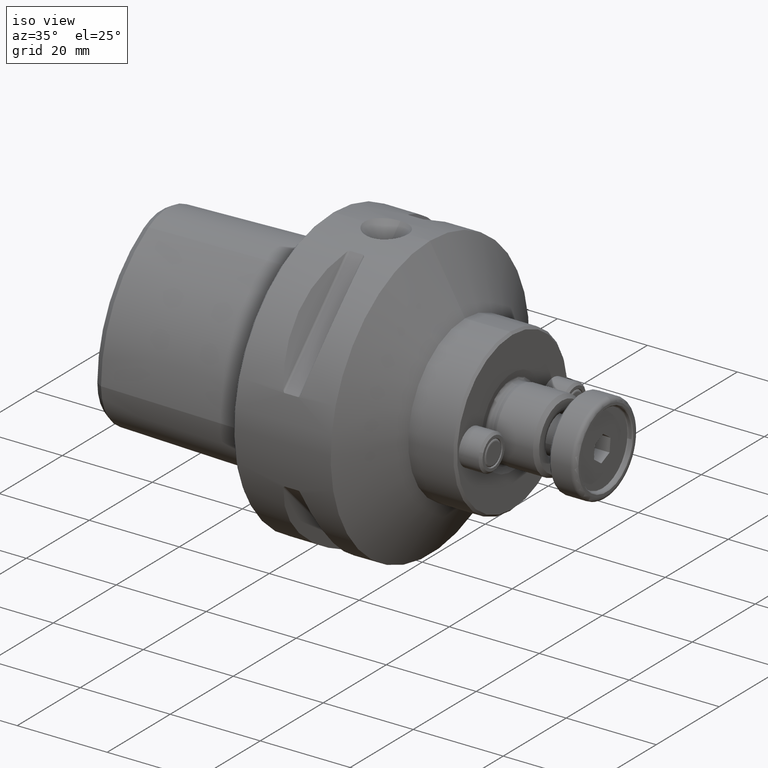
[diagram: clean part render]
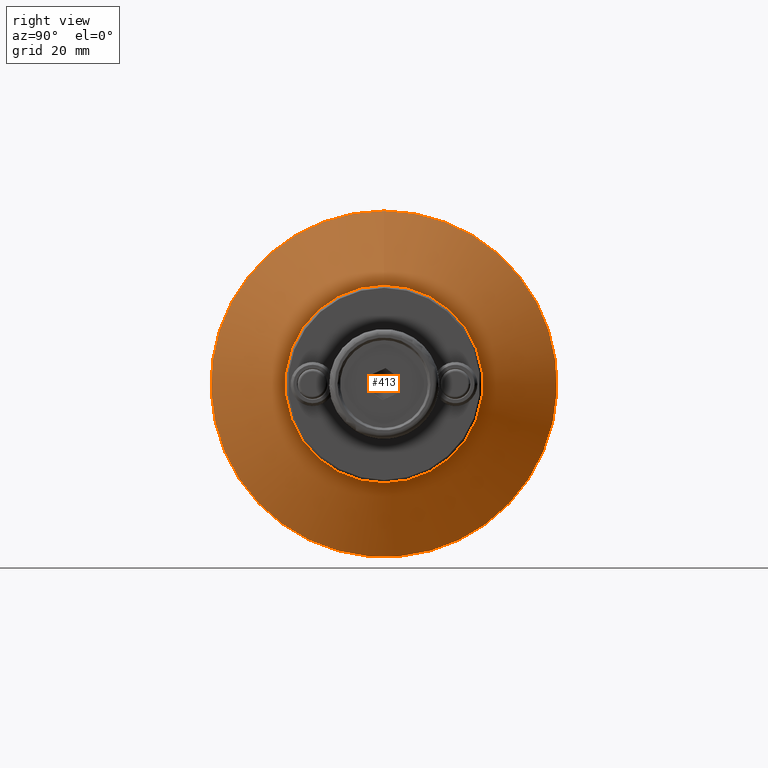
[diagram: tour spotlight — one face highlighted and labeled with its STEP entity id]
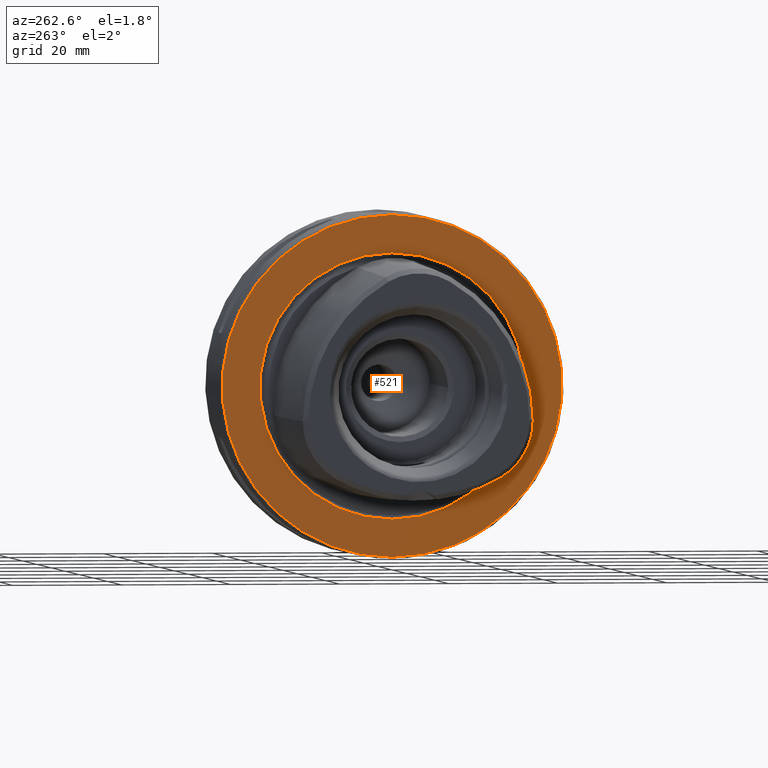
[diagram: tour spotlight — one face highlighted and labeled with its STEP entity id]
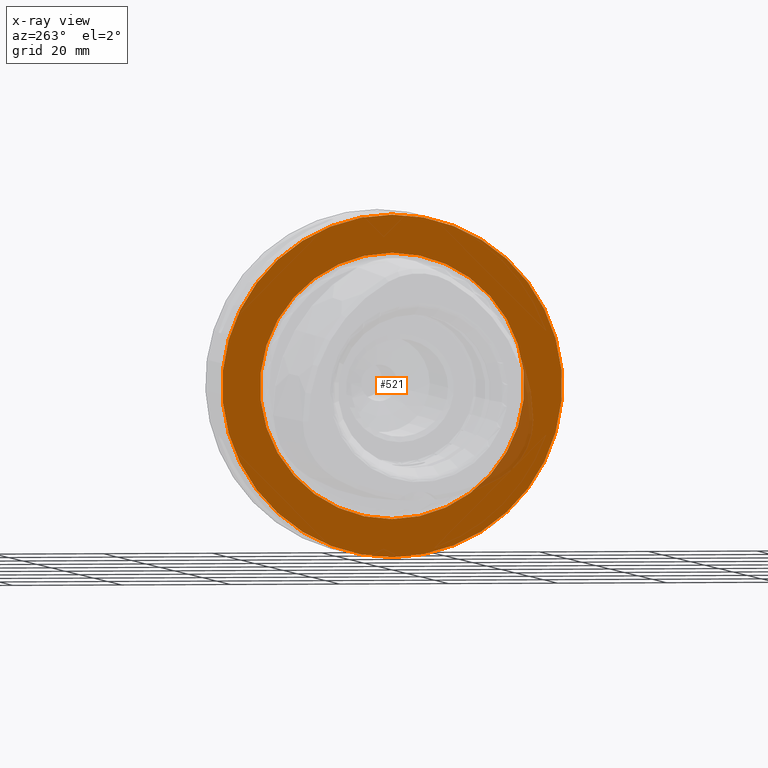
[diagram: x-ray of the same camera — body ghosted, this tour face saturated]
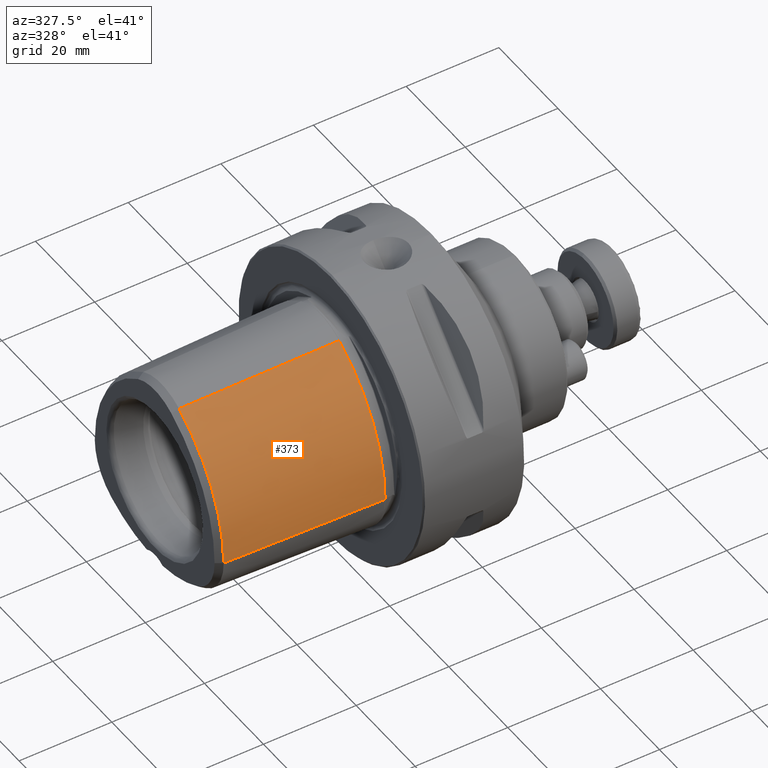
[diagram: tour spotlight — one face highlighted and labeled with its STEP entity id]
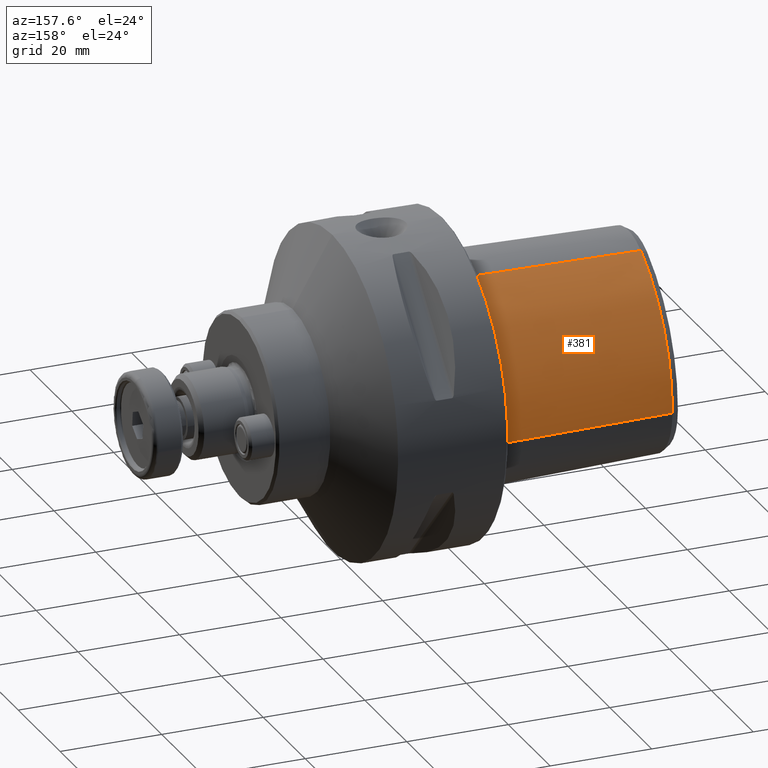
[diagram: tour spotlight — one face highlighted and labeled with its STEP entity id]
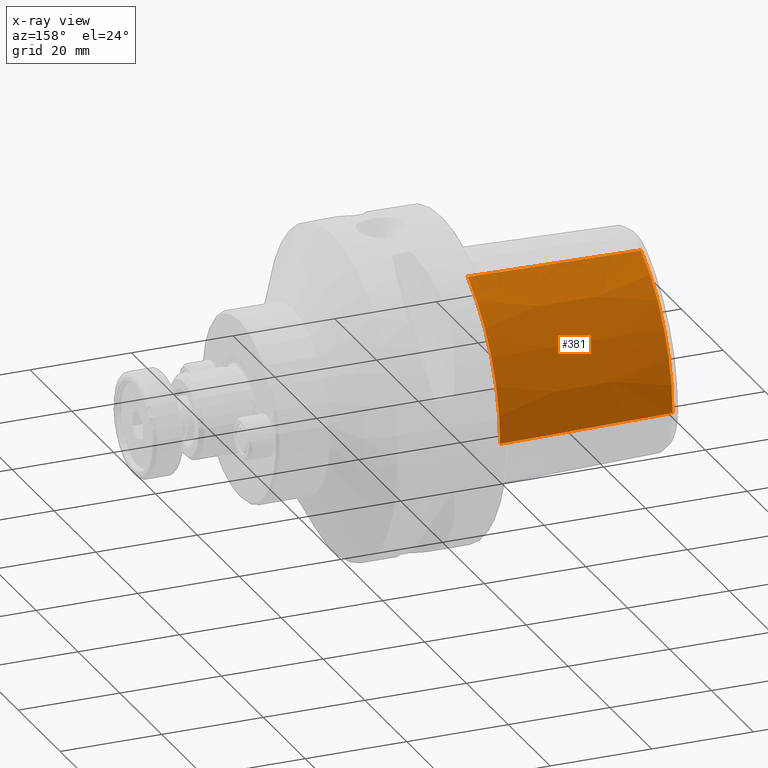
[diagram: x-ray of the same camera — body ghosted, this tour face saturated]
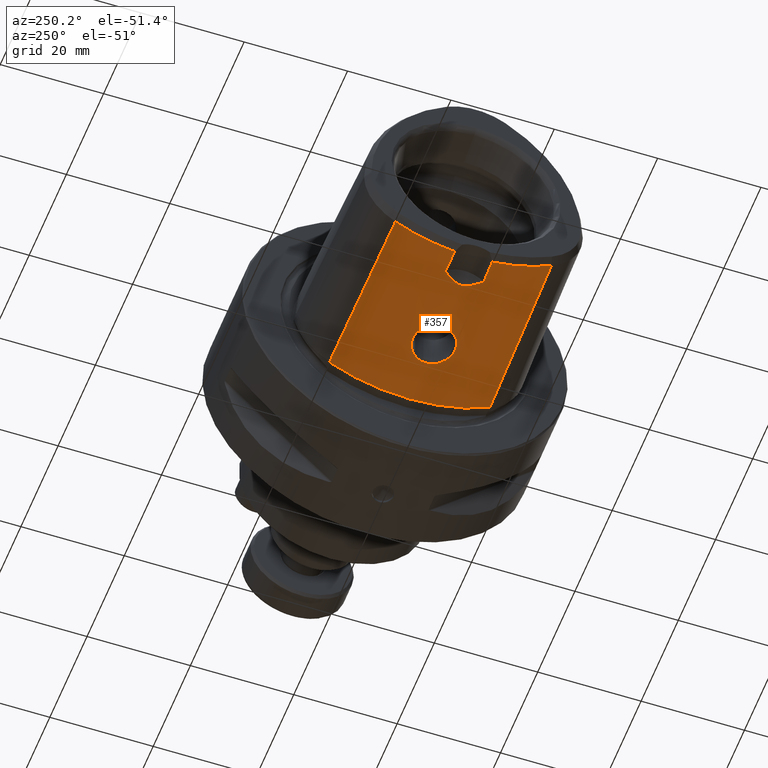
[diagram: tour spotlight — one face highlighted and labeled with its STEP entity id]
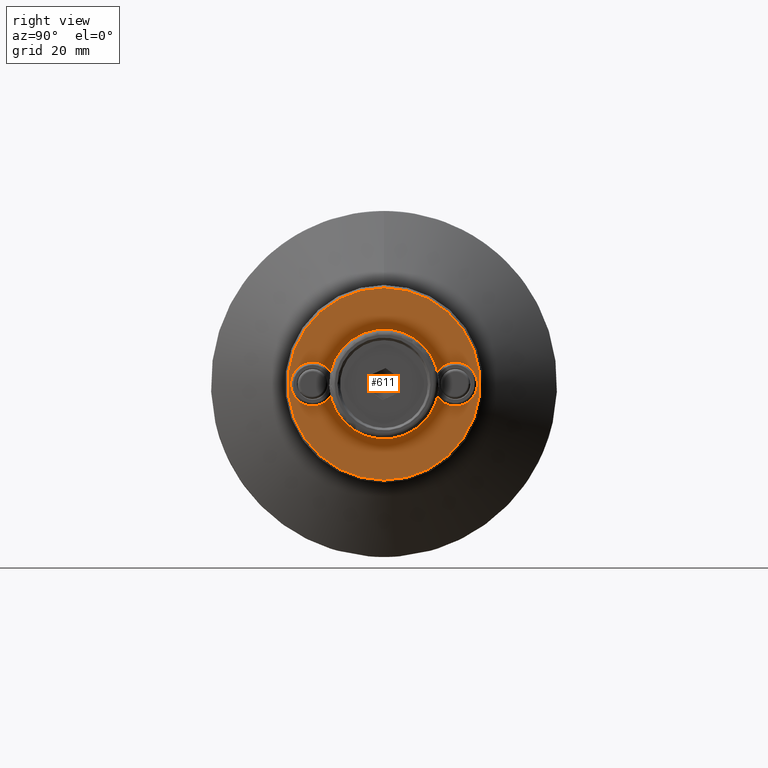
[diagram: tour spotlight — one face highlighted and labeled with its STEP entity id]
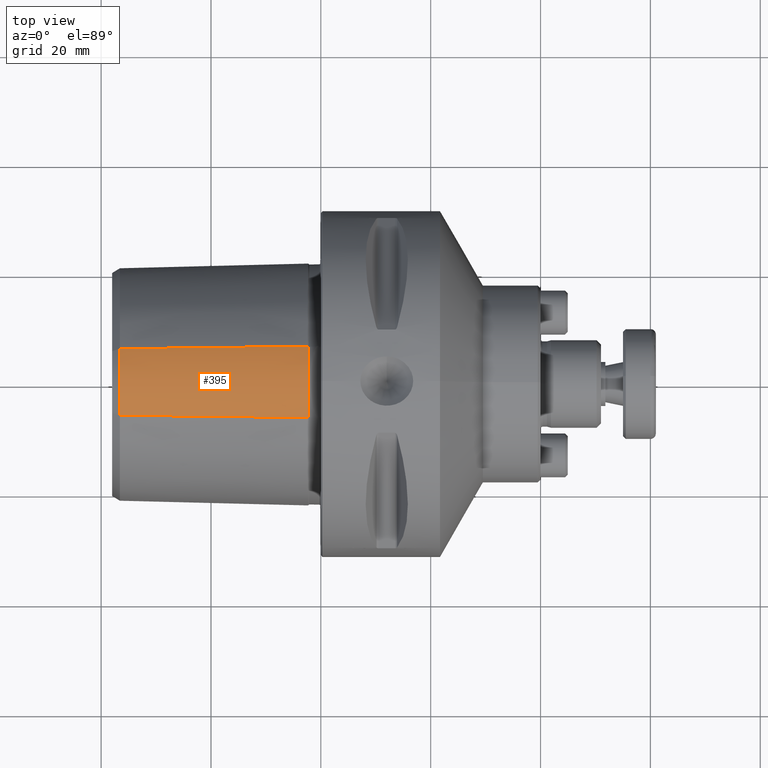
[diagram: tour spotlight — one face highlighted and labeled with its STEP entity id]
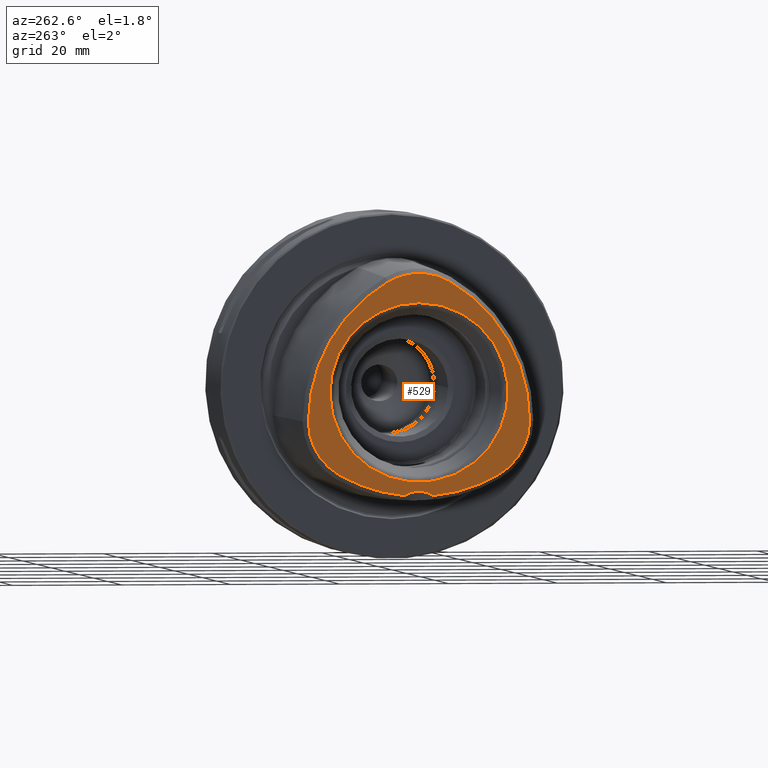
[diagram: tour spotlight — one face highlighted and labeled with its STEP entity id]
A machine part: a face-by-face anatomy tour. The part has 235 B-rep faces; the first image is the clean iso view, then the 8 largest visible faces are spotlighted one at a time (largest first), each with its STEP entity span.

Face 1 — right view, entity #413. In plain terms, the highlighted conical surface has half-angle 60 deg.
Definition (entity closure, byte-faithful):
#413 = ADVANCED_FACE( '', ( #934, #935 ), #936, .T. );
#934 = FACE_BOUND( '', #1668, .T. );
#935 = FACE_OUTER_BOUND( '', #1669, .T. );
#936 = CONICAL_SURFACE( '', #1670, 18.0000000000000, 1.04719755119660 );
#1668 = EDGE_LOOP( '', ( #2518 ) );
#1669 = EDGE_LOOP( '', ( #2519 ) );
#1670 = AXIS2_PLACEMENT_3D( '', #2520, #2521, #2522 );
#2518 = ORIENTED_EDGE( '', *, *, #3990, .T. );
#2519 = ORIENTED_EDGE( '', *, *, #3991, .T. );
#2520 = CARTESIAN_POINT( '', ( 29.4942286340599, 0.000000000000000, 6.12323399573676E-016 ) );
#2521 = DIRECTION( '', ( -1.00000000000000, 0.000000000000000, -0.000000000000000 ) );
#2522 = DIRECTION( '', ( 0.000000000000000, 0.000000000000000, 1.00000000000000 ) );
#3990 = EDGE_CURVE( '', #4669, #4669, #4670, .T. );
#3991 = EDGE_CURVE( '', #4671, #4671, #4672, .F. );
#4669 = VERTEX_POINT( '', #5750 );
#4670 = CIRCLE( '', #5751, 18.0000000000000 );
#4671 = VERTEX_POINT( '', #5752 );
#4672 = CIRCLE( '', #5753, 31.5000000000000 );
#5750 = CARTESIAN_POINT( '', ( 29.4942286340599, 0.000000000000000, 18.0000000000000 ) );
#5751 = AXIS2_PLACEMENT_3D( '', #7250, #7251, #7252 );
#5752 = CARTESIAN_POINT( '', ( 21.7000000000000, 0.000000000000000, 31.5000000000000 ) );
#5753 = AXIS2_PLACEMENT_3D( '', #7253, #7254, #7255 );
#7250 = CARTESIAN_POINT( '', ( 29.4942286340599, 0.000000000000000, 6.12323399573676E-016 ) );
#7251 = DIRECTION( '', ( -1.00000000000000, 0.000000000000000, 0.000000000000000 ) );
#7252 = DIRECTION( '', ( 0.000000000000000, 0.000000000000000, 1.00000000000000 ) );
#7253 = CARTESIAN_POINT( '', ( 21.7000000000000, 0.000000000000000, 6.12323399573676E-016 ) );
#7254 = DIRECTION( '', ( -1.00000000000000, 0.000000000000000, 0.000000000000000 ) );
#7255 = DIRECTION( '', ( 0.000000000000000, 0.000000000000000, 1.00000000000000 ) );

Face 2 — auxiliary view, entity #521. An x-ray twin of the same camera follows (body ghosted, this face saturated) — the face is partly hidden behind the body. In plain terms, the highlighted planar face has unit normal (-1, 0, 0).
Definition (entity closure, byte-faithful):
#521 = ADVANCED_FACE( '', ( #1121, #1122 ), #1123, .T. );
#1121 = FACE_OUTER_BOUND( '', #1855, .T. );
#1122 = FACE_BOUND( '', #1856, .T. );
#1123 = PLANE( '', #1857 );
#1855 = EDGE_LOOP( '', ( #2899 ) );
#1856 = EDGE_LOOP( '', ( #2900 ) );
#1857 = AXIS2_PLACEMENT_3D( '', #2901, #2902, #2903 );
#2899 = ORIENTED_EDGE( '', *, *, #4168, .T. );
#2900 = ORIENTED_EDGE( '', *, *, #4169, .F. );
#2901 = CARTESIAN_POINT( '', ( -6.93889390390723E-015, 0.000000000000000, 24.2000000000000 ) );
#2902 = DIRECTION( '', ( -1.00000000000000, 0.000000000000000, 0.000000000000000 ) );
#2903 = DIRECTION( '', ( 0.000000000000000, 0.000000000000000, 1.00000000000000 ) );
#4168 = EDGE_CURVE( '', #4941, #4941, #4942, .T. );
#4169 = EDGE_CURVE( '', #4943, #4943, #4944, .T. );
#4941 = VERTEX_POINT( '', #6221 );
#4942 = CIRCLE( '', #6222, 31.2000000000000 );
#4943 = VERTEX_POINT( '', #6223 );
#4944 = CIRCLE( '', #6224, 24.2642135624132 );
#6221 = CARTESIAN_POINT( '', ( -6.93889390390723E-015, 0.000000000000000, 31.2000000000000 ) );
#6222 = AXIS2_PLACEMENT_3D( '', #7472, #7473, #7474 );
#6223 = CARTESIAN_POINT( '', ( -6.93889390390723E-015, 0.000000000000000, 24.2642135624132 ) );
#6224 = AXIS2_PLACEMENT_3D( '', #7475, #7476, #7477 );
#7472 = CARTESIAN_POINT( '', ( -6.93889390390723E-015, 0.000000000000000, 5.40937187851751E-015 ) );
#7473 = DIRECTION( '', ( -1.00000000000000, 0.000000000000000, 0.000000000000000 ) );
#7474 = DIRECTION( '', ( 0.000000000000000, 0.000000000000000, 1.00000000000000 ) );
#7475 = CARTESIAN_POINT( '', ( -6.93889390390723E-015, 0.000000000000000, 0.000000000000000 ) );
#7476 = DIRECTION( '', ( -1.00000000000000, 0.000000000000000, 0.000000000000000 ) );
#7477 = DIRECTION( '', ( 0.000000000000000, 0.000000000000000, 1.00000000000000 ) );

Face 3 — auxiliary view, entity #373. In plain terms, the highlighted conical surface has half-angle 1.432 deg.
Definition (entity closure, byte-faithful):
#373 = ADVANCED_FACE( '', ( #863 ), #864, .T. );
#863 = FACE_OUTER_BOUND( '', #1597, .T. );
#864 = CONICAL_SURFACE( '', #1598, 31.0497422611929, 0.0249969933592226 );
#1597 = EDGE_LOOP( '', ( #2371, #2372, #2373, #2374 ) );
#1598 = AXIS2_PLACEMENT_3D( '', #2375, #2376, #2377 );
#2371 = ORIENTED_EDGE( '', *, *, #3912, .F. );
#2372 = ORIENTED_EDGE( '', *, *, #3913, .T. );
#2373 = ORIENTED_EDGE( '', *, *, #3897, .T. );
#2374 = ORIENTED_EDGE( '', *, *, #3914, .T. );
#2375 = CARTESIAN_POINT( '', ( -3.00000000000000, 9.04974226119300, -5.22487113059656 ) );
#2376 = DIRECTION( '', ( 1.00000000000000, -0.000000000000000, 0.000000000000000 ) );
#2377 = DIRECTION( '', ( 0.000000000000000, 0.000000000000000, -1.00000000000000 ) );
#3897 = EDGE_CURVE( '', #4516, #4517, #4518, .T. );
#3912 = EDGE_CURVE( '', #4541, #4542, #4543, .T. );
#3913 = EDGE_CURVE( '', #4541, #4516, #4544, .T. );
#3914 = EDGE_CURVE( '', #4517, #4542, #4545, .T. );
#4516 = VERTEX_POINT( '', #5469 );
#4517 = VERTEX_POINT( '', #5470 );
#4518 = LINE( '', #5471, #5472 );
#4541 = VERTEX_POINT( '', #5524 );
#4542 = VERTEX_POINT( '', #5525 );
#4543 = LINE( '', #5526, #5527 );
#4544 = CIRCLE( '', #5528, 30.2101072674812 );
#4545 = CIRCLE( '', #5529, 31.0677289915256 );
#5469 = CARTESIAN_POINT( '', ( -36.5824429953531, -21.1603650062883, -5.22487113059656 ) );
#5470 = CARTESIAN_POINT( '', ( -2.28059412649899, -22.0179867303326, -5.22487113059657 ) );
#5471 = CARTESIAN_POINT( '', ( -3.00000000000000, -22.0000000000000, -5.22487113059656 ) );
#5472 = VECTOR( '', #7127, 1000.00000000000 );
#5524 = CARTESIAN_POINT( '', ( -36.5824429953531, -6.05531137254791, 20.9378492140952 ) );
#5525 = CARTESIAN_POINT( '', ( -2.28059412649928, -6.48412223457001, 21.6805714139549 ) );
#5526 = CARTESIAN_POINT( '', ( -3.00000000000000, -6.47512886940373, 21.6649944485558 ) );
#5527 = VECTOR( '', #7145, 1000.00000000000 );
#5528 = AXIS2_PLACEMENT_3D( '', #7146, #7147, #7148 );
#5529 = AXIS2_PLACEMENT_3D( '', #7149, #7150, #7151 );
#7127 = DIRECTION( '', ( 0.999687591429374, -0.0249943902133482, 4.88745584009368E-018 ) );
#7145 = DIRECTION( '', ( 0.999687591429374, -0.0124971951066744, 0.0216457768768605 ) );
#7146 = CARTESIAN_POINT( '', ( -36.5824429953531, 9.04974226119300, -5.22487113059656 ) );
#7147 = DIRECTION( '', ( 1.00000000000000, 0.000000000000000, 0.000000000000000 ) );
#7148 = DIRECTION( '', ( 0.000000000000000, 0.000000000000000, -1.00000000000000 ) );
#7149 = CARTESIAN_POINT( '', ( -2.28059412649917, 9.04974226119300, -5.22487113059656 ) );
#7150 = DIRECTION( '', ( -1.00000000000000, 6.12303176911189E-017, 0.000000000000000 ) );
#7151 = DIRECTION( '', ( -6.12303176911189E-017, -1.00000000000000, 0.000000000000000 ) );

Face 4 — auxiliary view, entity #381. An x-ray twin of the same camera follows (body ghosted, this face saturated) — the face is partly hidden behind the body. In plain terms, the highlighted conical surface has half-angle 1.432 deg.
Definition (entity closure, byte-faithful):
#381 = ADVANCED_FACE( '', ( #877 ), #878, .T. );
#877 = FACE_OUTER_BOUND( '', #1611, .T. );
#878 = CONICAL_SURFACE( '', #1612, 31.0497422611929, 0.0249969933592226 );
#1611 = EDGE_LOOP( '', ( #2401, #2402, #2403, #2404 ) );
#1612 = AXIS2_PLACEMENT_3D( '', #2405, #2406, #2407 );
#2401 = ORIENTED_EDGE( '', *, *, #3868, .F. );
#2402 = ORIENTED_EDGE( '', *, *, #3927, .T. );
#2403 = ORIENTED_EDGE( '', *, *, #3928, .T. );
#2404 = ORIENTED_EDGE( '', *, *, #3929, .T. );
#2405 = CARTESIAN_POINT( '', ( -3.00000000000000, -9.04974226119298, -5.22487113059658 ) );
#2406 = DIRECTION( '', ( 1.00000000000000, -0.000000000000000, 0.000000000000000 ) );
#2407 = DIRECTION( '', ( 0.000000000000000, 0.000000000000000, -1.00000000000000 ) );
#3868 = EDGE_CURVE( '', #4465, #4467, #4468, .T. );
#3927 = EDGE_CURVE( '', #4465, #4564, #4565, .T. );
#3928 = EDGE_CURVE( '', #4564, #4566, #4567, .T. );
#3929 = EDGE_CURVE( '', #4566, #4467, #4568, .T. );
#4465 = VERTEX_POINT( '', #5328 );
#4467 = VERTEX_POINT( '', #5330 );
#4468 = LINE( '', #5331, #5332 );
#4564 = VERTEX_POINT( '', #5554 );
#4565 = CIRCLE( '', #5555, 30.2101072674812 );
#4566 = VERTEX_POINT( '', #5556 );
#4567 = LINE( '', #5557, #5558 );
#4568 = CIRCLE( '', #5559, 31.0677289915256 );
#5328 = CARTESIAN_POINT( '', ( -36.5824429953531, 21.1603650062886, -5.22487113059657 ) );
#5330 = CARTESIAN_POINT( '', ( -2.28059412649949, 22.0179867303329, -5.22487113059657 ) );
#5331 = CARTESIAN_POINT( '', ( -3.00000000000000, 22.0000000000000, -5.22487113059657 ) );
#5332 = VECTOR( '', #7077, 1000.00000000000 );
#5554 = CARTESIAN_POINT( '', ( -36.5824429953531, 6.05531137254766, 20.9378492140951 ) );
#5555 = AXIS2_PLACEMENT_3D( '', #7170, #7171, #7172 );
#5556 = CARTESIAN_POINT( '', ( -2.28059412649925, 6.48412223456984, 21.6805714139549 ) );
#5557 = CARTESIAN_POINT( '', ( -3.00000000000000, 6.47512886940346, 21.6649944485557 ) );
#5558 = VECTOR( '', #7173, 1000.00000000000 );
#5559 = AXIS2_PLACEMENT_3D( '', #7174, #7175, #7176 );
#7077 = DIRECTION( '', ( 0.999687591429374, 0.0249943902133482, -2.34364824559621E-017 ) );
#7170 = CARTESIAN_POINT( '', ( -36.5824429953531, -9.04974226119297, -5.22487113059658 ) );
#7171 = DIRECTION( '', ( 1.00000000000000, 0.000000000000000, 0.000000000000000 ) );
#7172 = DIRECTION( '', ( 0.000000000000000, 0.000000000000000, -1.00000000000000 ) );
#7173 = DIRECTION( '', ( 0.999687591429374, 0.0124971951066741, 0.0216457768768607 ) );
#7174 = CARTESIAN_POINT( '', ( -2.28059412649939, -9.04974226119298, -5.22487113059658 ) );
#7175 = DIRECTION( '', ( -1.00000000000000, 6.12303176911189E-017, 0.000000000000000 ) );
#7176 = DIRECTION( '', ( -6.12303176911189E-017, -1.00000000000000, 0.000000000000000 ) );

Face 5 — auxiliary view, entity #357. In plain terms, the highlighted conical surface has half-angle 1.432 deg.
Definition (entity closure, byte-faithful):
#357 = ADVANCED_FACE( '', ( #833, #834 ), #835, .T. );
#833 = FACE_OUTER_BOUND( '', #1567, .T. );
#834 = FACE_BOUND( '', #1568, .T. );
#835 = CONICAL_SURFACE( '', #1569, 31.0497422611929, 0.0249969933592226 );
#1567 = EDGE_LOOP( '', ( #2309, #2310, #2311, #2312, #2313, #2314, #2315, #2316 ) );
#1568 = EDGE_LOOP( '', ( #2317 ) );
#1569 = AXIS2_PLACEMENT_3D( '', #2318, #2319, #2320 );
#2309 = ORIENTED_EDGE( '', *, *, #3877, .T. );
#2310 = ORIENTED_EDGE( '', *, *, #3878, .T. );
#2311 = ORIENTED_EDGE( '', *, *, #3866, .T. );
#2312 = ORIENTED_EDGE( '', *, *, #3879, .T. );
#2313 = ORIENTED_EDGE( '', *, *, #3880, .F. );
#2314 = ORIENTED_EDGE( '', *, *, #3881, .T. );
#2315 = ORIENTED_EDGE( '', *, *, #3882, .T. );
#2316 = ORIENTED_EDGE( '', *, *, #3883, .T. );
#2317 = ORIENTED_EDGE( '', *, *, #3884, .F. );
#2318 = CARTESIAN_POINT( '', ( -3.00000000000000, 1.30104260698260E-015, 10.4497422611929 ) );
#2319 = DIRECTION( '', ( 1.00000000000000, -0.000000000000000, 0.000000000000000 ) );
#2320 = DIRECTION( '', ( 0.000000000000000, 0.000000000000000, -1.00000000000000 ) );
#3866 = EDGE_CURVE( '', #4462, #4463, #4464, .T. );
#3877 = EDGE_CURVE( '', #4481, #4482, #4483, .T. );
#3878 = EDGE_CURVE( '', #4482, #4462, #4484, .T. );
#3879 = EDGE_CURVE( '', #4463, #4485, #4486, .T. );
#3880 = EDGE_CURVE( '', #4487, #4485, #4488, .T. );
#3881 = EDGE_CURVE( '', #4487, #4489, #4490, .T. );
#3882 = EDGE_CURVE( '', #4489, #4491, #4492, .T. );
#3883 = EDGE_CURVE( '', #4491, #4481, #4493, .T. );
#3884 = EDGE_CURVE( '', #4494, #4494, #4495, .T. );
#4462 = VERTEX_POINT( '', #5324 );
#4463 = VERTEX_POINT( '', #5325 );
#4464 = LINE( '', #5326, #5327 );
#4481 = VERTEX_POINT( '', #5345 );
#4482 = VERTEX_POINT( '', #5346 );
#4483 = B_SPLINE_CURVE_WITH_KNOTS( '', 3, ( #5347, #5348, #5349, #5350 ), .UNSPECIFIED., .F., .F., ( 4, 4 ), ( 3.12145211077177E-005, 0.00481593698441368 ), .UNSPECIFIED. );
#4484 = CIRCLE( '', #5351, 30.2101072674812 );
#4485 = VERTEX_POINT( '', #5352 );
#4486 = CIRCLE( '', #5353, 31.0677289915256 );
#4487 = VERTEX_POINT( '', #5354 );
#4488 = LINE( '', #5355, #5356 );
#4489 = VERTEX_POINT( '', #5357 );
#4490 = CIRCLE( '', #5358, 30.2101072674812 );
#4491 = VERTEX_POINT( '', #5359 );
#4492 = B_SPLINE_CURVE_WITH_KNOTS( '', 3, ( #5360, #5361, #5362, #5363 ), .UNSPECIFIED., .F., .F., ( 4, 4 ), ( 0.00144946933262563, 0.00623419179593159 ), .UNSPECIFIED. );
#4493 = B_SPLINE_CURVE_WITH_KNOTS( '', 3, ( #5364, #5365, #5366, #5367, #5368, #5369, #5370, #5371, #5372, #5373, #5374, #5375, #5376, #5377, #5378, #5379, #5380, #5381, #5382, #5383 ), .UNSPECIFIED., .F., .F., ( 4, 2, 2, 2, 2, 2, 2, 2, 2, 4 ), ( 3.11129854067756E-007, 0.00106027452703541, 0.00212023792421674, 0.00265021962280741, 0.00318020132139807, 0.00424016471857939, 0.00530012811576072, 0.00636009151294204, 0.00742005491012337, 0.00848001830730468 ), .UNSPECIFIED. );
#4494 = VERTEX_POINT( '', #5384 );
#4495 = B_SPLINE_CURVE_WITH_KNOTS( '', 3, ( #5385, #5386, #5387, #5388, #5389, #5390, #5391, #5392, #5393, #5394, #5395, #5396, #5397, #5398, #5399, #5400, #5401, #5402, #5403, #5404, #5405, #5406, #5407, #5408, #5409, #5410, #5411, #5412, #5413, #5414, #5415, #5416, #5417, #5418, #5419, #5420, #5421, #5422, #5423, #5424, #5425, #5426, #5427, #5428, #5429, #5430, #5431, #5432, #5433, #5434, #5435, #5436, #5437, #5438, #5439, #5440, #5441, #5442, #5443, #5444, #5445, #5446, #5447, #5448 ), .UNSPECIFIED., .T., .F., ( 2, 2, 2, 2, 2, 2, 2, 2, 2, 2, 2, 2, 2, 2, 2, 2, 2, 2, 2, 2, 2, 2, 2, 2, 2, 2, 2, 2, 2, 2, 2, 2, 2, 2 ), ( -0.000830269652060095, 0.000000000000000, 0.000830269652060104, 0.00166053930412021, 0.00249080895618031, 0.00332107860824042, 0.00415134826030052, 0.00498161791236063, 0.00581188756442073, 0.00664215721648084, 0.00747242686854094, 0.00830269652060105, 0.00913296617266115, 0.00996323582472125, 0.0107935054767814, 0.0116237751288415, 0.0124540447809016, 0.0132843144329617, 0.0141145840850218, 0.0149448537370819, 0.0157751233891420, 0.0166053930412020, 0.0174356626932621, 0.0182659323453222, 0.0190962019973823, 0.0199264716494424, 0.0215870109535626, 0.0224172806056227, 0.0232475502576828, 0.0240778199097429, 0.0249080895618030, 0.0257383592138631, 0.0265686288659232, 0.0273988985179833 ), .UNSPECIFIED. );
#5324 = CARTESIAN_POINT( '', ( -36.5824429953531, 15.1050536337404, -15.7129780834988 ) );
#5325 = CARTESIAN_POINT( '', ( -2.28059412649900, 15.5338644957626, -16.4557002833587 ) );
#5326 = CARTESIAN_POINT( '', ( -3.00000000000000, 15.5248711305962, -16.4401233179595 ) );
#5327 = VECTOR( '', #7073, 1000.00000000000 );
#5345 = CARTESIAN_POINT( '', ( -31.8000000000000, 3.71338904159242, -19.6517554112966 ) );
#5346 = CARTESIAN_POINT( '', ( -36.5824429953531, 3.61288780053967, -19.5435507032922 ) );
#5347 = CARTESIAN_POINT( '', ( -31.8000000000000, 3.71338904159241, -19.6517554112966 ) );
#5348 = CARTESIAN_POINT( '', ( -33.3941649931350, 3.68080287505197, -19.6156155444103 ) );
#5349 = CARTESIAN_POINT( '', ( -34.9883136879413, 3.64732572728819, -19.5795472867063 ) );
#5350 = CARTESIAN_POINT( '', ( -36.5824429953532, 3.61288780053965, -19.5435507032922 ) );
#5351 = AXIS2_PLACEMENT_3D( '', #7093, #7094, #7095 );
#5352 = CARTESIAN_POINT( '', ( -2.28059412649917, -15.5338644957630, -16.4557002833587 ) );
#5353 = AXIS2_PLACEMENT_3D( '', #7096, #7097, #7098 );
#5354 = CARTESIAN_POINT( '', ( -36.5824429953531, -15.1050536337408, -15.7129780834990 ) );
#5355 = CARTESIAN_POINT( '', ( -3.00000000000000, -15.5248711305966, -16.4401233179596 ) );
#5356 = VECTOR( '', #7099, 1000.00000000000 );
#5357 = CARTESIAN_POINT( '', ( -36.5824429953531, -3.61288780053967, -19.5435507032922 ) );
#5358 = AXIS2_PLACEMENT_3D( '', #7100, #7101, #7102 );
#5359 = CARTESIAN_POINT( '', ( -31.8000000000000, -3.71338904159242, -19.6517554112966 ) );
#5360 = CARTESIAN_POINT( '', ( -36.5824429953531, -3.61288780053965, -19.5435507032922 ) );
#5361 = CARTESIAN_POINT( '', ( -34.9883136879413, -3.64732572728819, -19.5795472867063 ) );
#5362 = CARTESIAN_POINT( '', ( -33.3941649931350, -3.68080287505197, -19.6156155444103 ) );
#5363 = CARTESIAN_POINT( '', ( -31.8000000000000, -3.71338904159241, -19.6517554112966 ) );
#5364 = CARTESIAN_POINT( '', ( -31.8000000000000, -3.71338904159241, -19.6517554112966 ) );
#5365 = CARTESIAN_POINT( '', ( -31.5728804162908, -3.44283091427969, -19.6908536103681 ) );
#5366 = CARTESIAN_POINT( '', ( -31.3514826903825, -3.16808517085708, -19.7266297350757 ) );
#5367 = CARTESIAN_POINT( '', ( -30.9285341555770, -2.60451038347517, -19.7910995969991 ) );
#5368 = CARTESIAN_POINT( '', ( -30.7266792888040, -2.31588864586967, -19.8198169087010 ) );
#5369 = CARTESIAN_POINT( '', ( -30.4520454442376, -1.86337384365195, -19.8567854885718 ) );
#5370 = CARTESIAN_POINT( '', ( -30.3652869878845, -1.70920738979582, -19.8680842377092 ) );
#5371 = CARTESIAN_POINT( '', ( -30.2057285367028, -1.39123149343274, -19.8883321618733 ) );
#5372 = CARTESIAN_POINT( '', ( -30.1325148474216, -1.22613900030973, -19.8973291364756 ) );
#5373 = CARTESIAN_POINT( '', ( -29.9490985327711, -0.724037229795338, -19.9194311941452 ) );
#5374 = CARTESIAN_POINT( '', ( -29.8739992807651, -0.377939211709250, -19.9278989138596 ) );
#5375 = CARTESIAN_POINT( '', ( -29.8698030728584, 0.346425053986163, -19.9283795577627 ) );
#5376 = CARTESIAN_POINT( '', ( -29.9411676000017, 0.695301783359365, -19.9203543454372 ) );
#5377 = CARTESIAN_POINT( '', ( -30.1842788698638, 1.37438991545364, -19.8911217673225 ) );
#5378 = CARTESIAN_POINT( '', ( -30.3481418531702, 1.69010150236038, -19.8707048002773 ) );
#5379 = CARTESIAN_POINT( '', ( -30.7153031526600, 2.29908529961220, -19.8214112427987 ) );
#5380 = CARTESIAN_POINT( '', ( -30.9198556237486, 2.59251983920168, -19.7923815738318 ) );
#5381 = CARTESIAN_POINT( '', ( -31.3475478353133, 3.16325612301712, -19.7272692230077 ) );
#5382 = CARTESIAN_POINT( '', ( -31.5710511730138, 3.44065181273616, -19.6911685110765 ) );
#5383 = CARTESIAN_POINT( '', ( -31.8000000000000, 3.71338904159241, -19.6517554112966 ) );
#5384 = CARTESIAN_POINT( '', ( -18.9197646258780, -2.41751562230440, -20.1064868000768 ) );
#5385 = CARTESIAN_POINT( '', ( -18.7477320349138, -2.63810943170221, -20.0933487249452 ) );
#5386 = CARTESIAN_POINT( '', ( -19.0917972168421, -2.19692181290660, -20.1196248752084 ) );
#5387 = CARTESIAN_POINT( '', ( -19.2389584680646, -1.96242645880159, -20.1321001796913 ) );
#5388 = CARTESIAN_POINT( '', ( -19.4833383758891, -1.46543112391950, -20.1538242800608 ) );
#5389 = CARTESIAN_POINT( '', ( -19.5807078992071, -1.20030621549893, -20.1630978404289 ) );
#5390 = CARTESIAN_POINT( '', ( -19.7145559058241, -0.663922646163063, -20.1760783975820 ) );
#5391 = CARTESIAN_POINT( '', ( -19.7526471112733, -0.390514635786934, -20.1799267133930 ) );
#5392 = CARTESIAN_POINT( '', ( -19.7688919799108, 0.167154888905180, -20.1815538369557 ) );
#5393 = CARTESIAN_POINT( '', ( -19.7463687045560, 0.445735249939169, -20.1792634175145 ) );
#5394 = CARTESIAN_POINT( '', ( -19.6432964763345, 0.988522547152964, -20.1691305626408 ) );
#5395 = CARTESIAN_POINT( '', ( -19.5613478488762, 1.25797871692857, -20.1611591116370 ) );
#5396 = CARTESIAN_POINT( '', ( -19.3444162470560, 1.76904218302924, -20.1413125426060 ) );
#5397 = CARTESIAN_POINT( '', ( -19.2104203695908, 2.01060073348560, -20.1295269802218 ) );
#5398 = CARTESIAN_POINT( '', ( -18.8928765117324, 2.46667788041872, -20.1040852655567 ) );
#5399 = CARTESIAN_POINT( '', ( -18.7098381652073, 2.67930435476358, -20.0905124415925 ) );
#5400 = CARTESIAN_POINT( '', ( -18.3103963638101, 3.06080043322408, -20.0646767418335 ) );
#5401 = CARTESIAN_POINT( '', ( -18.0908525803018, 3.23302467624647, -20.0522028336234 ) );
#5402 = CARTESIAN_POINT( '', ( -17.6215630748052, 3.53359205626879, -20.0306570799817 ) );
#5403 = CARTESIAN_POINT( '', ( -17.3757349430866, 3.65986857501353, -20.0217467099121 ) );
#5404 = CARTESIAN_POINT( '', ( -16.8627842977911, 3.86681468633345, -20.0091051721298 ) );
#5405 = CARTESIAN_POINT( '', ( -16.5929757955667, 3.94776679825321, -20.0053946911583 ) );
#5406 = CARTESIAN_POINT( '', ( -16.0498253584222, 4.05836001190726, -20.0045547392562 ) );
#5407 = CARTESIAN_POINT( '', ( -15.7754922721208, 4.08893489788933, -20.0073361553986 ) );
#5408 = CARTESIAN_POINT( '', ( -15.2213627289619, 4.10106993806117, -20.0196839829121 ) );
#5409 = CARTESIAN_POINT( '', ( -14.9405557754112, 4.08194084267969, -20.0293682165310 ) );
#5410 = CARTESIAN_POINT( '', ( -14.3952982024399, 3.99535274399868, -20.0545885618340 ) );
#5411 = CARTESIAN_POINT( '', ( -14.1280873921869, 3.92818110561229, -20.0701572095736 ) );
#5412 = CARTESIAN_POINT( '', ( -13.6047564277815, 3.74472705256874, -20.1063915951473 ) );
#5413 = CARTESIAN_POINT( '', ( -13.3501295881744, 3.62832405919291, -20.1270143871135 ) );
#5414 = CARTESIAN_POINT( '', ( -12.8731983959345, 3.35447329065620, -20.1702635683237 ) );
#5415 = CARTESIAN_POINT( '', ( -12.6481769402592, 3.19620293499989, -20.1930756596534 ) );
#5416 = CARTESIAN_POINT( '', ( -12.2267265001378, 2.83397497671748, -20.2392780962459 ) );
#5417 = CARTESIAN_POINT( '', ( -12.0344347089853, 2.63301017469658, -20.2622246777806 ) );
#5418 = CARTESIAN_POINT( '', ( -11.6957715778302, 2.20041919063598, -20.3047350412878 ) );
#5419 = CARTESIAN_POINT( '', ( -11.5472761179623, 1.96642593951631, -20.3245564668986 ) );
#5420 = CARTESIAN_POINT( '', ( -11.2996924985409, 1.46620911019981, -20.3586384312728 ) );
#5421 = CARTESIAN_POINT( '', ( -11.2040463003835, 1.20744477041083, -20.3723998113304 ) );
#5422 = CARTESIAN_POINT( '', ( -11.0686946048952, 0.672655415505454, -20.3920909031394 ) );
#5423 = CARTESIAN_POINT( '', ( -11.0291637581478, 0.392883551396015, -20.3979968160454 ) );
#5424 = CARTESIAN_POINT( '', ( -11.0123450665338, -0.161513952728901, -20.4004963335631 ) );
#5425 = CARTESIAN_POINT( '', ( -11.0339333969792, -0.436916311329066, -20.3972540559765 ) );
#5426 = CARTESIAN_POINT( '', ( -11.1373983006211, -0.984113440476336, -20.3820595387556 ) );
#5427 = CARTESIAN_POINT( '', ( -11.2192825234279, -1.25233684163220, -20.3701180099090 ) );
#5428 = CARTESIAN_POINT( '', ( -11.4350556562023, -1.76083175699247, -20.3398475068899 ) );
#5429 = CARTESIAN_POINT( '', ( -11.5712770693545, -2.00634037476262, -20.3212054056384 ) );
#5430 = CARTESIAN_POINT( '', ( -11.8885726155506, -2.46138650282085, -20.2801946236843 ) );
#5431 = CARTESIAN_POINT( '', ( -12.0684048532823, -2.67045561750956, -20.2579751329422 ) );
#5432 = CARTESIAN_POINT( '', ( -12.4687007263464, -3.05340369726902, -20.2122064088705 ) );
#5433 = CARTESIAN_POINT( '', ( -12.6893214634603, -3.22647059797400, -20.1886959867207 ) );
#5434 = CARTESIAN_POINT( '', ( -13.3849968419418, -3.67383998769970, -20.1218723334692 ) );
#5435 = CARTESIAN_POINT( '', ( -13.9100964670706, -3.88625031984380, -20.0810939089536 ) );
#5436 = CARTESIAN_POINT( '', ( -14.7203213694052, -4.05496243685356, -20.0385458381442 ) );
#5437 = CARTESIAN_POINT( '', ( -14.9982554712463, -4.08737319802529, -20.0271531609552 ) );
#5438 = CARTESIAN_POINT( '', ( -15.5547044859063, -4.10175540162247, -20.0111828958197 ) );
#5439 = CARTESIAN_POINT( '', ( -15.8303035349281, -4.08410863673227, -20.0066289085753 ) );
#5440 = CARTESIAN_POINT( '', ( -16.3763361340611, -3.99997315261070, -20.0040237601178 ) );
#5441 = CARTESIAN_POINT( '', ( -16.6495550775526, -3.93236378400301, -20.0060475560743 ) );
#5442 = CARTESIAN_POINT( '', ( -17.1737619257708, -3.75012738855662, -20.0158183639159 ) );
#5443 = CARTESIAN_POINT( '', ( -17.4248639407534, -3.63619978238827, -20.0234766947393 ) );
#5444 = CARTESIAN_POINT( '', ( -17.9047994836711, -3.36207449050664, -20.0428653254609 ) );
#5445 = CARTESIAN_POINT( '', ( -18.1353686451130, -3.19999269794678, -20.0547335401699 ) );
#5446 = CARTESIAN_POINT( '', ( -18.5558823059058, -2.83830159482095, -20.0799516358656 ) );
#5447 = CARTESIAN_POINT( '', ( -18.7477320349138, -2.63810943170221, -20.0933487249452 ) );
#5448 = CARTESIAN_POINT( '', ( -19.0917972168421, -2.19692181290660, -20.1196248752084 ) );
#7073 = DIRECTION( '', ( 0.999687591429374, 0.0124971951066739, -0.0216457768768608 ) );
#7093 = CARTESIAN_POINT( '', ( -36.5824429953531, 5.36732148067776E-015, 10.4497422611929 ) );
#7094 = DIRECTION( '', ( 1.00000000000000, 0.000000000000000, 0.000000000000000 ) );
#7095 = DIRECTION( '', ( 0.000000000000000, 0.000000000000000, -1.00000000000000 ) );
#7096 = CARTESIAN_POINT( '', ( -2.28059412649917, 1.30104260698260E-015, 10.4497422611929 ) );
#7097 = DIRECTION( '', ( -1.00000000000000, 6.12303176911189E-017, 0.000000000000000 ) );
#7098 = DIRECTION( '', ( -6.12303176911189E-017, -1.00000000000000, 0.000000000000000 ) );
#7099 = DIRECTION( '', ( 0.999687591429374, -0.0124971951066741, -0.0216457768768607 ) );
#7100 = CARTESIAN_POINT( '', ( -36.5824429953531, 5.36732148067776E-015, 10.4497422611929 ) );
#7101 = DIRECTION( '', ( 1.00000000000000, 0.000000000000000, 0.000000000000000 ) );
#7102 = DIRECTION( '', ( 0.000000000000000, 0.000000000000000, -1.00000000000000 ) );

Face 6 — right view, entity #611. In plain terms, the highlighted planar face has unit normal (-1, 0, 0).
Definition (entity closure, byte-faithful):
#611 = ADVANCED_FACE( '', ( #1284, #1285 ), #1286, .F. );
#1284 = FACE_OUTER_BOUND( '', #2018, .T. );
#1285 = FACE_BOUND( '', #2019, .T. );
#1286 = PLANE( '', #2020 );
#2018 = EDGE_LOOP( '', ( #3293 ) );
#2019 = EDGE_LOOP( '', ( #3294, #3295, #3296, #3297 ) );
#2020 = AXIS2_PLACEMENT_3D( '', #3298, #3299, #3300 );
#3293 = ORIENTED_EDGE( '', *, *, #4288, .T. );
#3294 = ORIENTED_EDGE( '', *, *, #3909, .F. );
#3295 = ORIENTED_EDGE( '', *, *, #4320, .T. );
#3296 = ORIENTED_EDGE( '', *, *, #4321, .F. );
#3297 = ORIENTED_EDGE( '', *, *, #4322, .T. );
#3298 = CARTESIAN_POINT( '', ( 40.0000000000000, 0.000000000000000, 6.12323399573676E-016 ) );
#3299 = DIRECTION( '', ( -1.00000000000000, 0.000000000000000, 0.000000000000000 ) );
#3300 = DIRECTION( '', ( 0.000000000000000, 0.000000000000000, 1.00000000000000 ) );
#3909 = EDGE_CURVE( '', #4536, #4537, #4538, .F. );
#4288 = EDGE_CURVE( '', #5116, #5116, #5117, .F. );
#4320 = EDGE_CURVE( '', #4536, #5156, #5157, .T. );
#4321 = EDGE_CURVE( '', #5158, #5156, #5159, .F. );
#4322 = EDGE_CURVE( '', #5158, #4537, #5160, .T. );
#4536 = VERTEX_POINT( '', #5506 );
#4537 = VERTEX_POINT( '', #5507 );
#4538 = CIRCLE( '', #5508, 4.00000000000000 );
#5116 = VERTEX_POINT( '', #6736 );
#5117 = CIRCLE( '', #6737, 17.5000000000000 );
#5156 = VERTEX_POINT( '', #6800 );
#5157 = CIRCLE( '', #6801, 9.86503003164294 );
#5158 = VERTEX_POINT( '', #6802 );
#5159 = CIRCLE( '', #6803, 4.00000000000000 );
#5160 = CIRCLE( '', #6804, 9.86503003164294 );
#5506 = CARTESIAN_POINT( '', ( 40.0000000000000, 9.62764682789296, -2.15110066770005 ) );
#5507 = CARTESIAN_POINT( '', ( 40.0000000000000, 9.62764682789296, 2.15110066770005 ) );
#5508 = AXIS2_PLACEMENT_3D( '', #7142, #7143, #7144 );
#6736 = CARTESIAN_POINT( '', ( 40.0000000000000, 0.000000000000000, 17.5000000000000 ) );
#6737 = AXIS2_PLACEMENT_3D( '', #7594, #7595, #7596 );
#6800 = CARTESIAN_POINT( '', ( 40.0000000000000, -9.62764682789296, -2.15110066770005 ) );
#6801 = AXIS2_PLACEMENT_3D( '', #7625, #7626, #7627 );
#6802 = CARTESIAN_POINT( '', ( 40.0000000000000, -9.62764682789296, 2.15110066770005 ) );
#6803 = AXIS2_PLACEMENT_3D( '', #7628, #7629, #7630 );
#6804 = AXIS2_PLACEMENT_3D( '', #7631, #7632, #7633 );
#7142 = CARTESIAN_POINT( '', ( 40.0000000000000, 13.0000000000000, 0.000000000000000 ) );
#7143 = DIRECTION( '', ( -1.00000000000000, 0.000000000000000, 0.000000000000000 ) );
#7144 = DIRECTION( '', ( 0.000000000000000, 0.000000000000000, 1.00000000000000 ) );
#7594 = CARTESIAN_POINT( '', ( 40.0000000000000, 0.000000000000000, 6.12323399573676E-016 ) );
#7595 = DIRECTION( '', ( -1.00000000000000, 0.000000000000000, 0.000000000000000 ) );
#7596 = DIRECTION( '', ( 0.000000000000000, 0.000000000000000, 1.00000000000000 ) );
#7625 = CARTESIAN_POINT( '', ( 40.0000000000000, 0.000000000000000, 0.000000000000000 ) );
#7626 = DIRECTION( '', ( -1.00000000000000, 0.000000000000000, 0.000000000000000 ) );
#7627 = DIRECTION( '', ( 0.000000000000000, 0.000000000000000, 1.00000000000000 ) );
#7628 = CARTESIAN_POINT( '', ( 40.0000000000000, -13.0000000000000, 0.000000000000000 ) );
#7629 = DIRECTION( '', ( -1.00000000000000, 0.000000000000000, 0.000000000000000 ) );
#7630 = DIRECTION( '', ( 0.000000000000000, 0.000000000000000, 1.00000000000000 ) );
#7631 = CARTESIAN_POINT( '', ( 40.0000000000000, 0.000000000000000, 0.000000000000000 ) );
#7632 = DIRECTION( '', ( -1.00000000000000, 0.000000000000000, 0.000000000000000 ) );
#7633 = DIRECTION( '', ( 0.000000000000000, 0.000000000000000, 1.00000000000000 ) );

Face 7 — top view, entity #395. In plain terms, the highlighted conical surface has half-angle 1.432 deg.
Definition (entity closure, byte-faithful):
#395 = ADVANCED_FACE( '', ( #903 ), #904, .T. );
#903 = FACE_OUTER_BOUND( '', #1637, .T. );
#904 = CONICAL_SURFACE( '', #1638, 12.9502577388071, 0.0249969933592226 );
#1637 = EDGE_LOOP( '', ( #2452, #2453, #2454, #2455 ) );
#1638 = AXIS2_PLACEMENT_3D( '', #2456, #2457, #2458 );
#2452 = ORIENTED_EDGE( '', *, *, #3928, .F. );
#2453 = ORIENTED_EDGE( '', *, *, #3953, .T. );
#2454 = ORIENTED_EDGE( '', *, *, #3912, .T. );
#2455 = ORIENTED_EDGE( '', *, *, #3954, .T. );
#2456 = CARTESIAN_POINT( '', ( -3.00000000000000, 1.30104260698260E-015, 10.4497422611929 ) );
#2457 = DIRECTION( '', ( 1.00000000000000, -0.000000000000000, 0.000000000000000 ) );
#2458 = DIRECTION( '', ( 0.000000000000000, 0.000000000000000, -1.00000000000000 ) );
#3912 = EDGE_CURVE( '', #4541, #4542, #4543, .T. );
#3928 = EDGE_CURVE( '', #4564, #4566, #4567, .T. );
#3953 = EDGE_CURVE( '', #4564, #4541, #4606, .T. );
#3954 = EDGE_CURVE( '', #4542, #4566, #4607, .T. );
#4541 = VERTEX_POINT( '', #5524 );
#4542 = VERTEX_POINT( '', #5525 );
#4543 = LINE( '', #5526, #5527 );
#4564 = VERTEX_POINT( '', #5554 );
#4566 = VERTEX_POINT( '', #5556 );
#4567 = LINE( '', #5557, #5558 );
#4606 = CIRCLE( '', #5647, 12.1106227450955 );
#4607 = CIRCLE( '', #5648, 12.9682444691399 );
#5524 = CARTESIAN_POINT( '', ( -36.5824429953531, -6.05531137254791, 20.9378492140952 ) );
#5525 = CARTESIAN_POINT( '', ( -2.28059412649928, -6.48412223457001, 21.6805714139549 ) );
#5526 = CARTESIAN_POINT( '', ( -3.00000000000000, -6.47512886940373, 21.6649944485558 ) );
#5527 = VECTOR( '', #7145, 1000.00000000000 );
#5554 = CARTESIAN_POINT( '', ( -36.5824429953531, 6.05531137254766, 20.9378492140951 ) );
#5556 = CARTESIAN_POINT( '', ( -2.28059412649925, 6.48412223456984, 21.6805714139549 ) );
#5557 = CARTESIAN_POINT( '', ( -3.00000000000000, 6.47512886940346, 21.6649944485557 ) );
#5558 = VECTOR( '', #7173, 1000.00000000000 );
#5647 = AXIS2_PLACEMENT_3D( '', #7196, #7197, #7198 );
#5648 = AXIS2_PLACEMENT_3D( '', #7199, #7200, #7201 );
#7145 = DIRECTION( '', ( 0.999687591429374, -0.0124971951066744, 0.0216457768768605 ) );
#7173 = DIRECTION( '', ( 0.999687591429374, 0.0124971951066741, 0.0216457768768607 ) );
#7196 = CARTESIAN_POINT( '', ( -36.5824429953531, 5.39502984971932E-015, 10.4497422611929 ) );
#7197 = DIRECTION( '', ( 1.00000000000000, 0.000000000000000, 0.000000000000000 ) );
#7198 = DIRECTION( '', ( 0.000000000000000, 0.000000000000000, -1.00000000000000 ) );
#7199 = CARTESIAN_POINT( '', ( -2.28059412649928, 1.30104260698260E-015, 10.4497422611929 ) );
#7200 = DIRECTION( '', ( -1.00000000000000, 6.12303176911189E-017, 0.000000000000000 ) );
#7201 = DIRECTION( '', ( -6.12303176911189E-017, -1.00000000000000, 0.000000000000000 ) );

Face 8 — auxiliary view, entity #529. In plain terms, the highlighted planar face has unit normal (-1, 0, 0).
Definition (entity closure, byte-faithful):
#529 = ADVANCED_FACE( '', ( #1134, #1135 ), #1136, .T. );
#1134 = FACE_BOUND( '', #1868, .T. );
#1135 = FACE_OUTER_BOUND( '', #1869, .T. );
#1136 = PLANE( '', #1870 );
#1868 = EDGE_LOOP( '', ( #2934 ) );
#1869 = EDGE_LOOP( '', ( #2935, #2936, #2937, #2938, #2939, #2940, #2941, #2942 ) );
#1870 = AXIS2_PLACEMENT_3D( '', #2943, #2944, #2945 );
#2934 = ORIENTED_EDGE( '', *, *, #4187, .F. );
#2935 = ORIENTED_EDGE( '', *, *, #4188, .T. );
#2936 = ORIENTED_EDGE( '', *, *, #4189, .T. );
#2937 = ORIENTED_EDGE( '', *, *, #3919, .F. );
#2938 = ORIENTED_EDGE( '', *, *, #4190, .T. );
#2939 = ORIENTED_EDGE( '', *, *, #4046, .T. );
#2940 = ORIENTED_EDGE( '', *, *, #4191, .T. );
#2941 = ORIENTED_EDGE( '', *, *, #4192, .T. );
#2942 = ORIENTED_EDGE( '', *, *, #4193, .T. );
#2943 = CARTESIAN_POINT( '', ( -38.0000000000000, 1.04083408558608E-014, -5.22487113059657 ) );
#2944 = DIRECTION( '', ( -1.00000000000000, 6.12303176911189E-017, 0.000000000000000 ) );
#2945 = DIRECTION( '', ( -6.12303176911189E-017, -1.00000000000000, 0.000000000000000 ) );
#3919 = EDGE_CURVE( '', #4552, #4553, #4554, .T. );
#4046 = EDGE_CURVE( '', #4761, #4763, #4765, .T. );
#4187 = EDGE_CURVE( '', #4970, #4970, #4971, .F. );
#4188 = EDGE_CURVE( '', #4972, #4973, #4974, .T. );
#4189 = EDGE_CURVE( '', #4973, #4553, #4975, .T. );
#4190 = EDGE_CURVE( '', #4552, #4761, #4976, .T. );
#4191 = EDGE_CURVE( '', #4763, #4977, #4978, .T. );
#4192 = EDGE_CURVE( '', #4977, #4979, #4980, .T. );
#4193 = EDGE_CURVE( '', #4979, #4972, #4981, .T. );
#4552 = VERTEX_POINT( '', #5536 );
#4553 = VERTEX_POINT( '', #5537 );
#4554 = CIRCLE( '', #5538, 5.00000000000000 );
#4761 = VERTEX_POINT( '', #5884 );
#4763 = VERTEX_POINT( '', #5887 );
#4765 = CIRCLE( '', #5890, 11.2442476329409 );
#4970 = VERTEX_POINT( '', #6292 );
#4971 = CIRCLE( '', #6293, 16.3622434380475 );
#4972 = VERTEX_POINT( '', #6294 );
#4973 = VERTEX_POINT( '', #6295 );
#4974 = CIRCLE( '', #6296, 11.2442476329409 );
#4975 = CIRCLE( '', #6297, 29.3437321553266 );
#4976 = CIRCLE( '', #6298, 29.3437321553266 );
#4977 = VERTEX_POINT( '', #6299 );
#4978 = CIRCLE( '', #6300, 29.3437321553266 );
#4979 = VERTEX_POINT( '', #6301 );
#4980 = CIRCLE( '', #6302, 11.2442476329409 );
#4981 = CIRCLE( '', #6303, 29.3437321553266 );
#5536 = CARTESIAN_POINT( '', ( -38.0000000000000, -2.66956773904171, -18.7723046364872 ) );
#5537 = CARTESIAN_POINT( '', ( -38.0000000000000, 2.66956773904171, -18.7723046364872 ) );
#5538 = AXIS2_PLACEMENT_3D( '', #7158, #7159, #7160 );
#5884 = CARTESIAN_POINT( '', ( -38.0000000000000, -14.6718660776634, -14.9626752271664 ) );
#5887 = CARTESIAN_POINT( '', ( -38.0000000000000, -20.2939898941336, -5.22487113059656 ) );
#5890 = AXIS2_PLACEMENT_3D( '', #7330, #7331, #7332 );
#6292 = CARTESIAN_POINT( '', ( -38.0000000000000, 16.3622434380475, 0.000000000000000 ) );
#6293 = AXIS2_PLACEMENT_3D( '', #7491, #7492, #7493 );
#6294 = CARTESIAN_POINT( '', ( -38.0000000000000, 20.2939898941336, -5.22487113059657 ) );
#6295 = CARTESIAN_POINT( '', ( -38.0000000000000, 14.6718660776632, -14.9626752271666 ) );
#6296 = AXIS2_PLACEMENT_3D( '', #7494, #7495, #7496 );
#6297 = AXIS2_PLACEMENT_3D( '', #7497, #7498, #7499 );
#6298 = AXIS2_PLACEMENT_3D( '', #7500, #7501, #7502 );
#6299 = CARTESIAN_POINT( '', ( -38.0000000000000, -5.62212381647047, 20.1875463577625 ) );
#6300 = AXIS2_PLACEMENT_3D( '', #7503, #7504, #7505 );
#6301 = CARTESIAN_POINT( '', ( -38.0000000000000, 5.62212381647047, 20.1875463577628 ) );
#6302 = AXIS2_PLACEMENT_3D( '', #7506, #7507, #7508 );
#6303 = AXIS2_PLACEMENT_3D( '', #7509, #7510, #7511 );
#7158 = CARTESIAN_POINT( '', ( -38.0000000000000, 0.000000000000000, -23.0000000000000 ) );
#7159 = DIRECTION( '', ( -1.00000000000000, 0.000000000000000, 0.000000000000000 ) );
#7160 = DIRECTION( '', ( 0.000000000000000, 0.000000000000000, 1.00000000000000 ) );
#7330 = CARTESIAN_POINT( '', ( -38.0000000000000, -9.04974226119297, -5.22487113059658 ) );
#7331 = DIRECTION( '', ( -1.00000000000000, 6.12303176911189E-017, 0.000000000000000 ) );
#7332 = DIRECTION( '', ( -6.12303176911189E-017, -1.00000000000000, 0.000000000000000 ) );
#7491 = CARTESIAN_POINT( '', ( -38.0000000000000, 8.57224447675663E-017, 0.000000000000000 ) );
#7492 = DIRECTION( '', ( 1.00000000000000, -6.12303176911189E-017, 0.000000000000000 ) );
#7493 = DIRECTION( '', ( 6.12303176911189E-017, 1.00000000000000, 0.000000000000000 ) );
#7494 = CARTESIAN_POINT( '', ( -38.0000000000000, 9.04974226119300, -5.22487113059656 ) );
#7495 = DIRECTION( '', ( -1.00000000000000, 6.12303176911189E-017, 0.000000000000000 ) );
#7496 = DIRECTION( '', ( -6.12303176911189E-017, -1.00000000000000, 0.000000000000000 ) );
#7497 = CARTESIAN_POINT( '', ( -38.0000000000000, 5.54478528889486E-015, 10.4497422611929 ) );
#7498 = DIRECTION( '', ( -1.00000000000000, 6.12303176911189E-017, 0.000000000000000 ) );
#7499 = DIRECTION( '', ( -6.12303176911189E-017, -1.00000000000000, 0.000000000000000 ) );
#7500 = CARTESIAN_POINT( '', ( -38.0000000000000, 5.54478528889486E-015, 10.4497422611929 ) );
#7501 = DIRECTION( '', ( -1.00000000000000, 6.12303176911189E-017, 0.000000000000000 ) );
#7502 = DIRECTION( '', ( -6.12303176911189E-017, -1.00000000000000, 0.000000000000000 ) );
#7503 = CARTESIAN_POINT( '', ( -38.0000000000000, 9.04974226119300, -5.22487113059656 ) );
#7504 = DIRECTION( '', ( -1.00000000000000, 6.12303176911189E-017, 0.000000000000000 ) );
#7505 = DIRECTION( '', ( -6.12303176911189E-017, -1.00000000000000, 0.000000000000000 ) );
#7506 = CARTESIAN_POINT( '', ( -38.0000000000000, 5.57249365793643E-015, 10.4497422611929 ) );
#7507 = DIRECTION( '', ( -1.00000000000000, 6.12303176911189E-017, 0.000000000000000 ) );
#7508 = DIRECTION( '', ( -6.12303176911189E-017, -1.00000000000000, 0.000000000000000 ) );
#7509 = CARTESIAN_POINT( '', ( -38.0000000000000, -9.04974226119297, -5.22487113059658 ) );
#7510 = DIRECTION( '', ( -1.00000000000000, 6.12303176911189E-017, 0.000000000000000 ) );
#7511 = DIRECTION( '', ( -6.12303176911189E-017, -1.00000000000000, 0.000000000000000 ) );